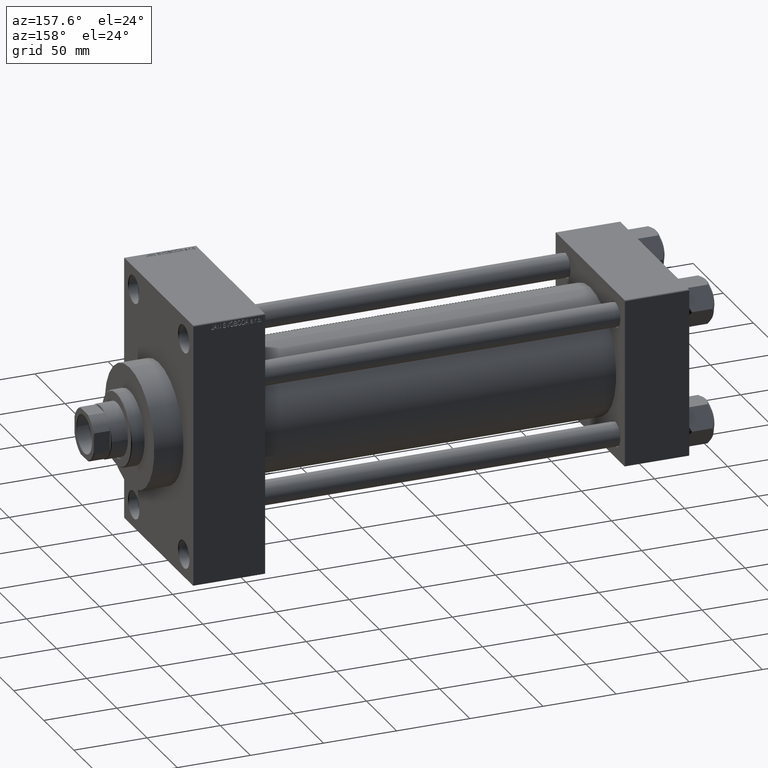
[diagram: clean part render]
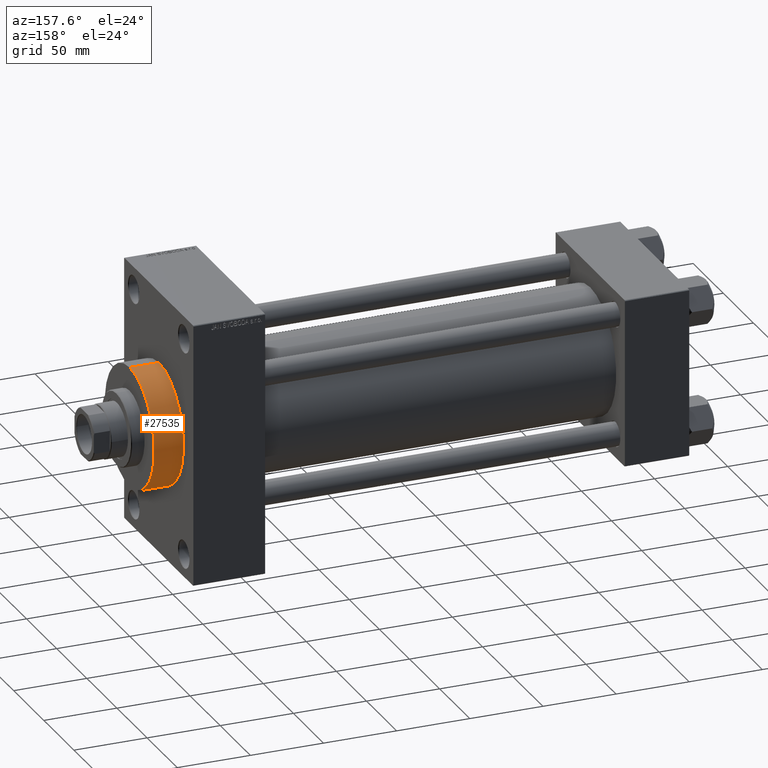
[diagram: same view with one face highlighted and labeled with its STEP entity id]
A machine part, auxiliary view. The second image highlights one B-rep face of the part: STEP entity #27535.
In plain terms, the highlighted cylindrical surface (partial cylindrical patch) has radius 41 mm, axis along (-1, -0, -0).
Its self-contained STEP definition (entity closure, byte-faithful):
#78 = VERTEX_POINT ( 'NONE', #45626 ) ;
#739 = DIRECTION ( 'NONE',  ( 0.000000000000000000, 0.000000000000000000, -1.000000000000000000 ) ) ;
#1525 = VERTEX_POINT ( 'NONE', #46529 ) ;
#2986 = CARTESIAN_POINT ( 'NONE',  ( 338.9999999999999432, 0.000000000000000000, 0.000000000000000000 ) ) ;
#5545 = LINE ( 'NONE', #27936, #14336 ) ;
#6679 = ORIENTED_EDGE ( 'NONE', *, *, #24867, .T. ) ;
#6996 = AXIS2_PLACEMENT_3D ( 'NONE', #2986, #31212, #27594 ) ;
#7624 = VECTOR ( 'NONE', #29391, 1000.000000000000000 ) ;
#7999 = EDGE_CURVE ( 'NONE', #1525, #78, #5545, .T. ) ;
#9717 = AXIS2_PLACEMENT_3D ( 'NONE', #45092, #19087, #739 ) ;
#12190 = DIRECTION ( 'NONE',  ( 0.000000000000000000, 0.000000000000000000, 1.000000000000000000 ) ) ;
#12925 = ORIENTED_EDGE ( 'NONE', *, *, #7999, .T. ) ;
#14336 = VECTOR ( 'NONE', #39489, 1000.000000000000000 ) ;
#18107 = EDGE_CURVE ( 'NONE', #39844, #25218, #32782, .T. ) ;
#19087 = DIRECTION ( 'NONE',  ( 1.000000000000000000, 0.000000000000000000, 0.000000000000000000 ) ) ;
#24867 = EDGE_CURVE ( 'NONE', #78, #25218, #32376, .T. ) ;
#25218 = VERTEX_POINT ( 'NONE', #45859 ) ;
#27535 = ADVANCED_FACE ( 'NONE', ( #34585 ), #30251, .T. ) ;
#27594 = DIRECTION ( 'NONE',  ( 0.000000000000000000, 0.000000000000000000, -1.000000000000000000 ) ) ;
#27936 = CARTESIAN_POINT ( 'NONE',  ( 359.0000000000000000, 5.021051876504148963E-15, -41.00000000000000000 ) ) ;
#28265 = ORIENTED_EDGE ( 'NONE', *, *, #37800, .F. ) ;
#29391 = DIRECTION ( 'NONE',  ( -1.000000000000000000, -0.000000000000000000, -0.000000000000000000 ) ) ;
#30251 = CYLINDRICAL_SURFACE ( 'NONE', #40141, 41.00000000000000000 ) ;
#30964 = CARTESIAN_POINT ( 'NONE',  ( 359.0000000000000000, 0.000000000000000000, 0.000000000000000000 ) ) ;
#31212 = DIRECTION ( 'NONE',  ( 1.000000000000000000, 0.000000000000000000, 0.000000000000000000 ) ) ;
#32025 = CIRCLE ( 'NONE', #9717, 41.00000000000000000 ) ;
#32376 = CIRCLE ( 'NONE', #6996, 41.00000000000000000 ) ;
#32782 = LINE ( 'NONE', #44324, #7624 ) ;
#33155 = CARTESIAN_POINT ( 'NONE',  ( 359.0000000000000000, 0.000000000000000000, 41.00000000000000000 ) ) ;
#34083 = ORIENTED_EDGE ( 'NONE', *, *, #18107, .F. ) ;
#34585 = FACE_OUTER_BOUND ( 'NONE', #34627, .T. ) ;
#34627 = EDGE_LOOP ( 'NONE', ( #28265, #12925, #6679, #34083 ) ) ;
#37800 = EDGE_CURVE ( 'NONE', #1525, #39844, #32025, .T. ) ;
#39489 = DIRECTION ( 'NONE',  ( -1.000000000000000000, -0.000000000000000000, -0.000000000000000000 ) ) ;
#39844 = VERTEX_POINT ( 'NONE', #33155 ) ;
#40141 = AXIS2_PLACEMENT_3D ( 'NONE', #30964, #42045, #12190 ) ;
#42045 = DIRECTION ( 'NONE',  ( -1.000000000000000000, -0.000000000000000000, -0.000000000000000000 ) ) ;
#44324 = CARTESIAN_POINT ( 'NONE',  ( 359.0000000000000000, 0.000000000000000000, 41.00000000000000000 ) ) ;
#45092 = CARTESIAN_POINT ( 'NONE',  ( 359.0000000000000000, 0.000000000000000000, 0.000000000000000000 ) ) ;
#45626 = CARTESIAN_POINT ( 'NONE',  ( 338.9999999999999432, 5.021051876504148963E-15, -41.00000000000000000 ) ) ;
#45859 = CARTESIAN_POINT ( 'NONE',  ( 338.9999999999999432, 0.000000000000000000, 41.00000000000000000 ) ) ;
#46529 = CARTESIAN_POINT ( 'NONE',  ( 359.0000000000000000, 5.021051876504148963E-15, -41.00000000000000000 ) ) ;